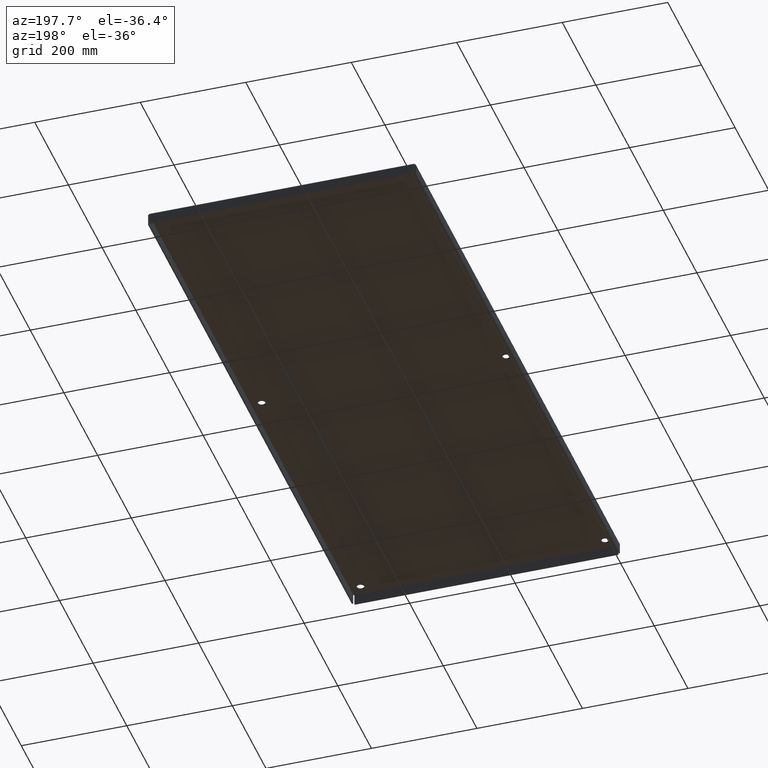
[diagram: clean part render]
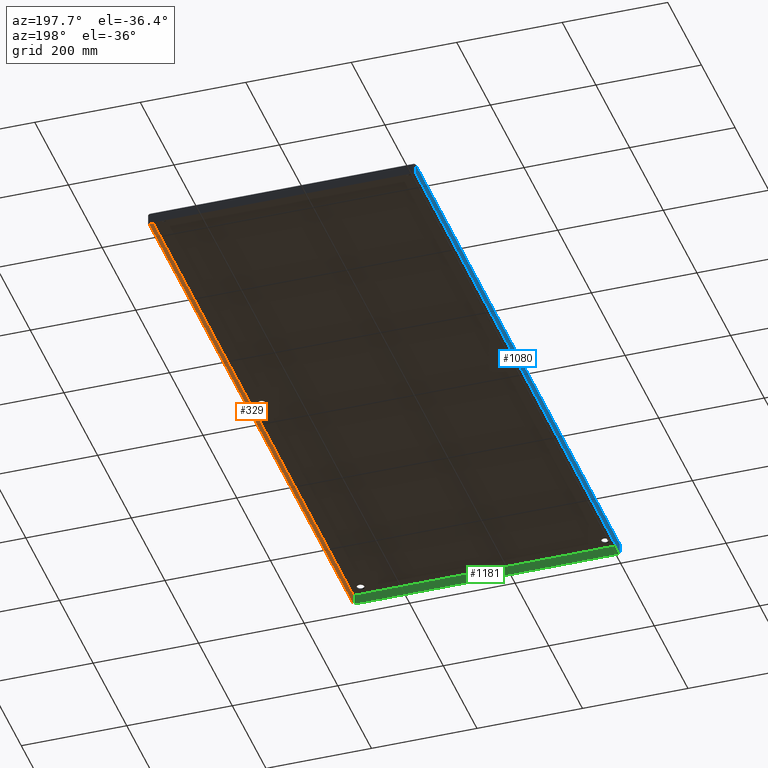
[diagram: same view with three faces highlighted in distinct colors, each labeled with its STEP entity id]
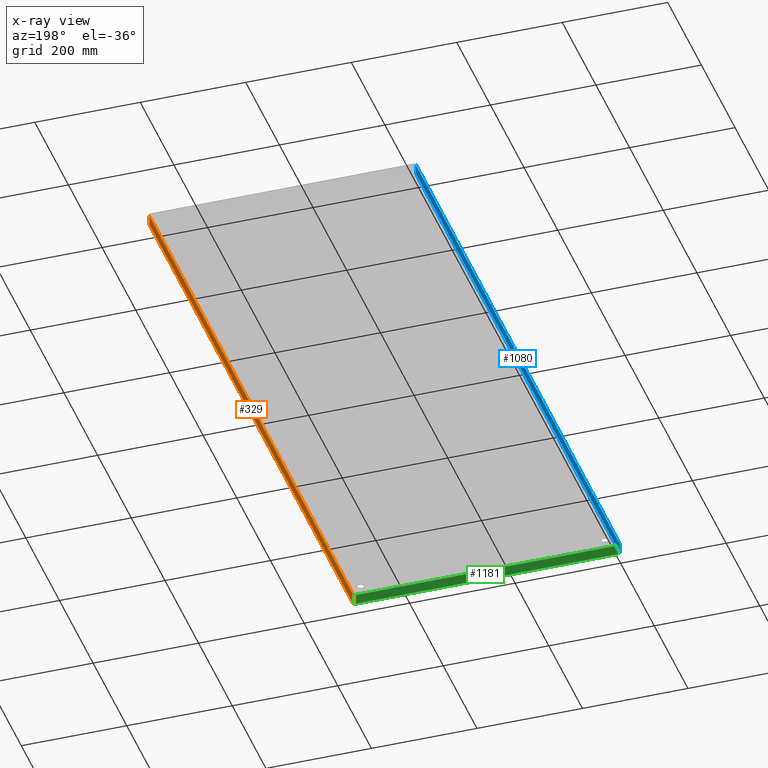
[diagram: x-ray of the same camera — body ghosted, the three highlighted faces saturated]
A machine part, auxiliary view with three faces highlighted in distinct colors.
The next image is the same camera in x-ray (body ghosted, the three faces saturated) — at least one of them is partly hidden behind the body in this view.
Their STEP definitions:

[orange] entity #329 — the highlighted planar face has unit normal (1, 0, 0).
#290=CARTESIAN_POINT('',(19.90625,24.0,-0.362047006524195));
#291=DIRECTION('',(1.0,0.0,0.0));
#292=DIRECTION('',(0.0,0.0,-1.0));
#293=AXIS2_PLACEMENT_3D('',#290,#291,#292);
#294=PLANE('',#293);
#295=CARTESIAN_POINT('',(19.906250000000004,0.160041260736241,-0.015599999999999));
#296=VERTEX_POINT('',#295);
#297=CARTESIAN_POINT('',(19.90625,47.839958739263764,-0.015599999999999));
#298=VERTEX_POINT('',#297);
#299=CARTESIAN_POINT('',(19.906250000000004,0.160041260736239,-0.015599999999999));
#300=DIRECTION('',(0.0,1.0,0.0));
#301=VECTOR('',#300,47.679917478527528);
#302=LINE('',#299,#301);
#303=EDGE_CURVE('',#296,#298,#302,.T.);
#304=ORIENTED_EDGE('',*,*,#303,.T.);
#305=CARTESIAN_POINT('',(19.90625,47.83995873926375,-0.781249999999997));
#306=VERTEX_POINT('',#305);
#307=CARTESIAN_POINT('',(19.906249999999996,47.83995873926375,-0.015599999999999));
#308=DIRECTION('',(0.0,0.0,-1.0));
#309=VECTOR('',#308,0.765649999999999);
#310=LINE('',#307,#309);
#311=EDGE_CURVE('',#298,#306,#310,.T.);
#312=ORIENTED_EDGE('',*,*,#311,.T.);
#313=CARTESIAN_POINT('',(19.906250000000007,0.160041260736244,-0.781249999999997));
#314=VERTEX_POINT('',#313);
#315=CARTESIAN_POINT('',(19.90625,47.83995873926375,-0.781249999999997));
#316=DIRECTION('',(0.0,-1.0,0.0));
#317=VECTOR('',#316,47.679917478527507);
#318=LINE('',#315,#317);
#319=EDGE_CURVE('',#306,#314,#318,.T.);
#320=ORIENTED_EDGE('',*,*,#319,.T.);
#321=CARTESIAN_POINT('',(19.90625,0.160041260736244,-0.015599999999999));
#322=DIRECTION('',(0.0,0.0,-1.0));
#323=VECTOR('',#322,0.765649999999999);
#324=LINE('',#321,#323);
#325=EDGE_CURVE('',#296,#314,#324,.T.);
#326=ORIENTED_EDGE('',*,*,#325,.F.);
#327=EDGE_LOOP('',(#304,#312,#320,#326));
#328=FACE_OUTER_BOUND('',#327,.T.);
#329=ADVANCED_FACE('',(#328),#294,.F.);

[blue] entity #1080 — the highlighted planar face has unit normal (-1, 0, 0).
#823=CARTESIAN_POINT('',(-9.834653E-017,0.160041260736239,-0.015599999999999));
#824=VERTEX_POINT('',#823);
#825=CARTESIAN_POINT('',(-1.465363E-014,47.839958739263764,-0.015599999999999));
#826=VERTEX_POINT('',#825);
#827=CARTESIAN_POINT('',(-9.714460E-017,0.160041260736239,-0.0156));
#828=DIRECTION('',(0.0,1.0,0.0));
#829=VECTOR('',#828,47.679917478527528);
#830=LINE('',#827,#829);
#831=EDGE_CURVE('',#824,#826,#830,.T.);
#909=CARTESIAN_POINT('',(-1.469734E-014,47.839958739263764,-0.781249999999999));
#910=VERTEX_POINT('',#909);
#911=CARTESIAN_POINT('',(-1.468959E-014,47.839958739263764,-0.781249999999999));
#912=DIRECTION('',(0.0,0.0,1.0));
#913=VECTOR('',#912,0.76565);
#914=LINE('',#911,#913);
#915=EDGE_CURVE('',#910,#826,#914,.T.);
#1033=CARTESIAN_POINT('',(-1.529835E-016,0.16004126073624,-0.781249999999999));
#1034=VERTEX_POINT('',#1033);
#1035=CARTESIAN_POINT('',(-9.834653E-017,0.16004126073624,-0.015599999999999));
#1036=DIRECTION('',(0.0,0.0,-1.0));
#1037=VECTOR('',#1036,0.76565);
#1038=LINE('',#1035,#1037);
#1039=EDGE_CURVE('',#824,#1034,#1038,.T.);
#1057=CARTESIAN_POINT('',(-1.529835E-016,0.16004126073624,-0.781249999999999));
#1058=DIRECTION('',(0.0,1.0,0.0));
#1059=VECTOR('',#1058,47.679917478527521);
#1060=LINE('',#1057,#1059);
#1061=EDGE_CURVE('',#1034,#910,#1060,.T.);
#1069=CARTESIAN_POINT('',(-7.397844E-015,24.000000000000007,-0.362047006524195));
#1070=DIRECTION('',(-1.0,0.0,0.0));
#1071=DIRECTION('',(0.0,0.0,1.0));
#1072=AXIS2_PLACEMENT_3D('',#1069,#1070,#1071);
#1073=PLANE('',#1072);
#1074=ORIENTED_EDGE('',*,*,#831,.T.);
#1075=ORIENTED_EDGE('',*,*,#915,.F.);
#1076=ORIENTED_EDGE('',*,*,#1061,.F.);
#1077=ORIENTED_EDGE('',*,*,#1039,.F.);
#1078=EDGE_LOOP('',(#1074,#1075,#1076,#1077));
#1079=FACE_OUTER_BOUND('',#1078,.T.);
#1080=ADVANCED_FACE('',(#1079),#1073,.T.);

[green] entity #1181 — the highlighted planar face has unit normal (0, -1, 0).
#1142=CARTESIAN_POINT('',(9.999999999999998,0.09375,-0.361280030479228));
#1143=DIRECTION('',(0.0,-1.0,0.0));
#1144=DIRECTION('',(1.0,0.0,0.0));
#1145=AXIS2_PLACEMENT_3D('',#1142,#1143,#1144);
#1146=PLANE('',#1145);
#1147=CARTESIAN_POINT('',(0.16004126073624,0.09375,-0.015600000000001));
#1148=VERTEX_POINT('',#1147);
#1149=CARTESIAN_POINT('',(19.839958739263761,0.09375,-0.015600000000001));
#1150=VERTEX_POINT('',#1149);
#1151=CARTESIAN_POINT('',(0.160041260736239,0.09375,-0.0156));
#1152=DIRECTION('',(1.0,0.0,0.0));
#1153=VECTOR('',#1152,19.679917478527521);
#1154=LINE('',#1151,#1153);
#1155=EDGE_CURVE('',#1148,#1150,#1154,.T.);
#1156=ORIENTED_EDGE('',*,*,#1155,.T.);
#1157=CARTESIAN_POINT('',(19.839958739263761,0.09375,-0.781250000000001));
#1158=VERTEX_POINT('',#1157);
#1159=CARTESIAN_POINT('',(19.839958739263761,0.09375,-0.015600000000001));
#1160=DIRECTION('',(0.0,0.0,-1.0));
#1161=VECTOR('',#1160,0.76565);
#1162=LINE('',#1159,#1161);
#1163=EDGE_CURVE('',#1150,#1158,#1162,.T.);
#1164=ORIENTED_EDGE('',*,*,#1163,.T.);
#1165=CARTESIAN_POINT('',(0.160041260736237,0.09375,-0.781250000000001));
#1166=VERTEX_POINT('',#1165);
#1167=CARTESIAN_POINT('',(19.839958739263761,0.09375,-0.781250000000001));
#1168=DIRECTION('',(-1.0,0.0,0.0));
#1169=VECTOR('',#1168,19.679917478527521);
#1170=LINE('',#1167,#1169);
#1171=EDGE_CURVE('',#1158,#1166,#1170,.T.);
#1172=ORIENTED_EDGE('',*,*,#1171,.T.);
#1173=CARTESIAN_POINT('',(0.160041260736237,0.09375,-0.015600000000001));
#1174=DIRECTION('',(0.0,0.0,-1.0));
#1175=VECTOR('',#1174,0.76565);
#1176=LINE('',#1173,#1175);
#1177=EDGE_CURVE('',#1148,#1166,#1176,.T.);
#1178=ORIENTED_EDGE('',*,*,#1177,.F.);
#1179=EDGE_LOOP('',(#1156,#1164,#1172,#1178));
#1180=FACE_OUTER_BOUND('',#1179,.T.);
#1181=ADVANCED_FACE('',(#1180),#1146,.F.);